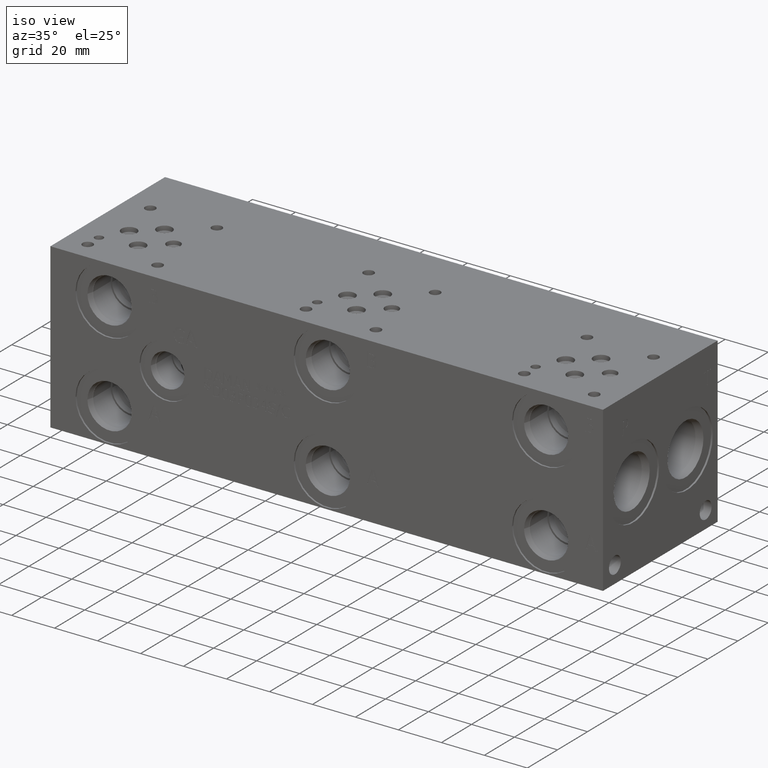
[diagram: clean part render]
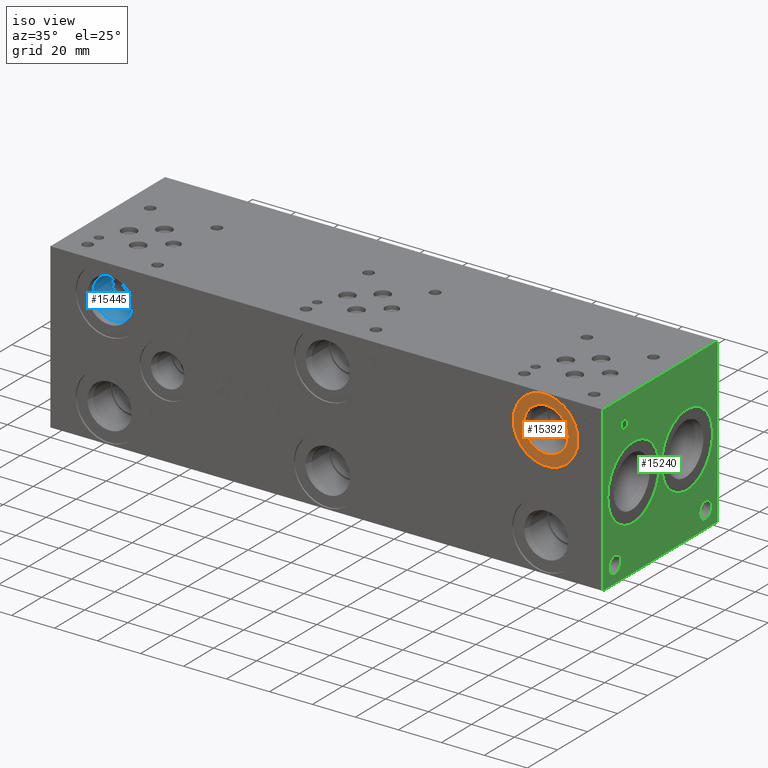
[diagram: same view with three faces highlighted in distinct colors, each labeled with its STEP entity id]
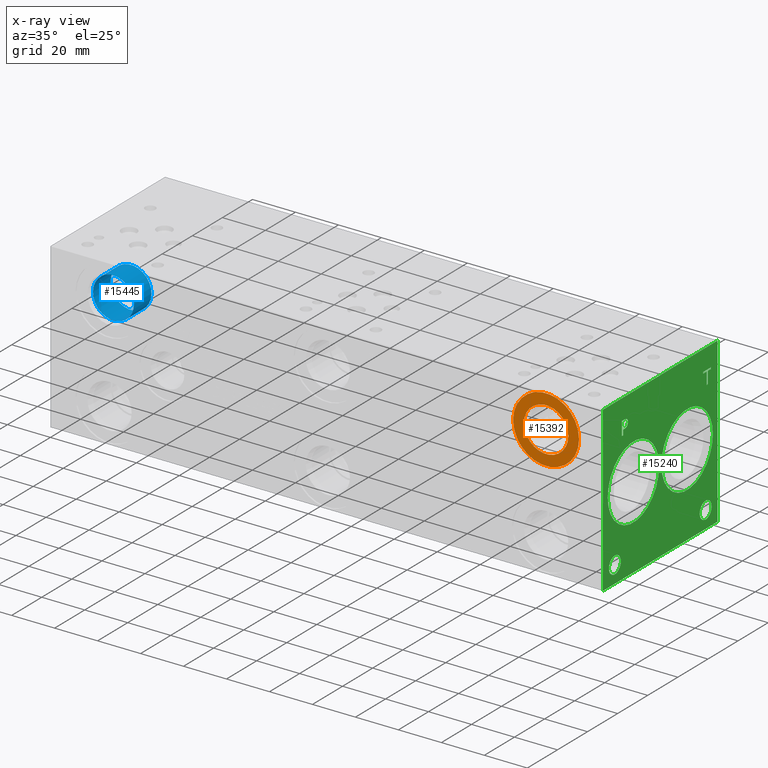
[diagram: x-ray of the same camera — body ghosted, the three highlighted faces saturated]
A machine part, iso view with three faces highlighted in distinct colors.
The next image is the same camera in x-ray (body ghosted, the three faces saturated) — at least one of them is partly hidden behind the body in this view.
Their STEP definitions:

[orange] entity #15392 — the highlighted planar face has unit normal (0, 1, 0).
#462=CIRCLE('',#16265,15.3162);
#463=CIRCLE('',#16266,15.3162);
#464=CIRCLE('',#16268,10.2997);
#465=CIRCLE('',#16269,10.2997);
#742=FACE_BOUND('',#2935,.T.);
#2043=FACE_OUTER_BOUND('',#2934,.T.);
#2934=EDGE_LOOP('',(#13052,#13053));
#2935=EDGE_LOOP('',(#13054,#13055));
#7082=VERTEX_POINT('',#26396);
#7083=VERTEX_POINT('',#26398);
#7084=VERTEX_POINT('',#26402);
#7085=VERTEX_POINT('',#26403);
#9149=EDGE_CURVE('',#7082,#7083,#462,.T.);
#9150=EDGE_CURVE('',#7083,#7082,#463,.T.);
#9151=EDGE_CURVE('',#7084,#7085,#464,.T.);
#9152=EDGE_CURVE('',#7085,#7084,#465,.T.);
#13052=ORIENTED_EDGE('',*,*,#9150,.F.);
#13053=ORIENTED_EDGE('',*,*,#9149,.F.);
#13054=ORIENTED_EDGE('',*,*,#9151,.T.);
#13055=ORIENTED_EDGE('',*,*,#9152,.T.);
#14161=PLANE('',#16267);
#15392=ADVANCED_FACE('',(#2043,#742),#14161,.F.);
#16265=AXIS2_PLACEMENT_3D('',#26399,#19266,#19267);
#16266=AXIS2_PLACEMENT_3D('',#26400,#19268,#19269);
#16267=AXIS2_PLACEMENT_3D('',#26401,#19270,#19271);
#16268=AXIS2_PLACEMENT_3D('',#26404,#19272,#19273);
#16269=AXIS2_PLACEMENT_3D('',#26405,#19274,#19275);
#19266=DIRECTION('center_axis',(0.,1.,0.));
#19267=DIRECTION('ref_axis',(1.,0.,0.));
#19268=DIRECTION('center_axis',(0.,1.,0.));
#19269=DIRECTION('ref_axis',(1.,0.,0.));
#19270=DIRECTION('center_axis',(0.,1.,0.));
#19271=DIRECTION('ref_axis',(0.,0.,1.));
#19272=DIRECTION('center_axis',(0.,1.,0.));
#19273=DIRECTION('ref_axis',(1.,0.,0.));
#19274=DIRECTION('center_axis',(0.,1.,0.));
#19275=DIRECTION('ref_axis',(1.,0.,0.));
#26396=CARTESIAN_POINT('',(214.8586,0.7874,60.325));
#26398=CARTESIAN_POINT('',(245.491,0.7874,60.325));
#26399=CARTESIAN_POINT('Origin',(230.1748,0.7874,60.325));
#26400=CARTESIAN_POINT('Origin',(230.1748,0.7874,60.325));
#26401=CARTESIAN_POINT('Origin',(240.4745,0.7874,60.325));
#26402=CARTESIAN_POINT('',(240.4745,0.7874,60.325));
#26403=CARTESIAN_POINT('',(219.8751,0.7874,60.325));
#26404=CARTESIAN_POINT('Origin',(230.1748,0.7874,60.325));
#26405=CARTESIAN_POINT('Origin',(230.1748,0.7874,60.325));

[blue] entity #15445 — the highlighted cylindrical surface (bore or boss wall) has radius 9.525 mm, axis along (0, -1, 0).
#182=CYLINDRICAL_SURFACE('',#16402,9.525);
#543=CIRCLE('',#16399,9.525);
#544=CIRCLE('',#16400,9.525);
#546=CIRCLE('',#16403,9.525);
#2096=FACE_OUTER_BOUND('',#2997,.T.);
#2997=EDGE_LOOP('',(#13306,#13307,#13308,#13309,#13310));
#4396=LINE('',#26670,#5731);
#5731=VECTOR('',#19587,9.525);
#7169=VERTEX_POINT('',#26661);
#7170=VERTEX_POINT('',#26662);
#7172=VERTEX_POINT('',#26668);
#9273=EDGE_CURVE('',#7169,#7170,#543,.T.);
#9274=EDGE_CURVE('',#7170,#7169,#544,.T.);
#9276=EDGE_CURVE('',#7172,#7172,#546,.T.);
#9277=EDGE_CURVE('',#7172,#7170,#4396,.T.);
#13306=ORIENTED_EDGE('',*,*,#9276,.F.);
#13307=ORIENTED_EDGE('',*,*,#9277,.T.);
#13308=ORIENTED_EDGE('',*,*,#9273,.F.);
#13309=ORIENTED_EDGE('',*,*,#9274,.F.);
#13310=ORIENTED_EDGE('',*,*,#9277,.F.);
#15445=ADVANCED_FACE('',(#2096),#182,.F.);
#16399=AXIS2_PLACEMENT_3D('',#26663,#19577,#19578);
#16400=AXIS2_PLACEMENT_3D('',#26664,#19579,#19580);
#16402=AXIS2_PLACEMENT_3D('',#26667,#19583,#19584);
#16403=AXIS2_PLACEMENT_3D('',#26669,#19585,#19586);
#19577=DIRECTION('center_axis',(0.,-1.,0.));
#19578=DIRECTION('ref_axis',(1.,0.,0.));
#19579=DIRECTION('center_axis',(0.,-1.,0.));
#19580=DIRECTION('ref_axis',(1.,0.,0.));
#19583=DIRECTION('center_axis',(0.,-1.,0.));
#19584=DIRECTION('ref_axis',(1.,0.,0.));
#19585=DIRECTION('center_axis',(0.,1.,0.));
#19586=DIRECTION('ref_axis',(1.,0.,0.));
#19587=DIRECTION('',(0.,1.,0.));
#26661=CARTESIAN_POINT('',(36.4998,15.0622,60.325));
#26662=CARTESIAN_POINT('',(17.4498,15.0622,60.325));
#26663=CARTESIAN_POINT('Origin',(26.9748,15.0622,60.325));
#26664=CARTESIAN_POINT('Origin',(26.9748,15.0622,60.325));
#26667=CARTESIAN_POINT('Origin',(26.9748,7.5311,60.325));
#26668=CARTESIAN_POINT('',(17.4498,3.4036,60.325));
#26669=CARTESIAN_POINT('Origin',(26.9748,3.4036,60.325));
#26670=CARTESIAN_POINT('',(17.4498,7.5311,60.325));

[green] entity #15240 — the highlighted planar face has unit normal (1, 0, 0).
#234=CIRCLE('',#15894,17.0688);
#235=CIRCLE('',#15895,17.0688);
#236=CIRCLE('',#15896,17.0688);
#237=CIRCLE('',#15897,17.0688);
#238=CIRCLE('',#15898,3.9624);
#239=CIRCLE('',#15899,3.9624);
#240=CIRCLE('',#15900,3.9624);
#241=CIRCLE('',#15901,3.9624);
#712=FACE_BOUND('',#2753,.T.);
#713=FACE_BOUND('',#2754,.T.);
#714=FACE_BOUND('',#2755,.T.);
#715=FACE_BOUND('',#2756,.T.);
#716=FACE_BOUND('',#2757,.T.);
#717=FACE_BOUND('',#2758,.T.);
#1152=B_SPLINE_CURVE_WITH_KNOTS('',2,(#25209,#25210,#25211,#25212),
 .UNSPECIFIED.,.F.,.F.,(3,1,3),(0.,1.,2.),.UNSPECIFIED.);
#1154=B_SPLINE_CURVE_WITH_KNOTS('',2,(#25230,#25231,#25232,#25233),
 .UNSPECIFIED.,.F.,.F.,(3,1,3),(0.,1.,2.),.UNSPECIFIED.);
#1156=B_SPLINE_CURVE_WITH_KNOTS('',2,(#25279,#25280,#25281,#25282),
 .UNSPECIFIED.,.F.,.F.,(3,1,3),(0.,1.,2.),.UNSPECIFIED.);
#1158=B_SPLINE_CURVE_WITH_KNOTS('',2,(#25297,#25298,#25299,#25300),
 .UNSPECIFIED.,.F.,.F.,(3,1,3),(0.,1.,2.),.UNSPECIFIED.);
#1891=FACE_OUTER_BOUND('',#2752,.T.);
#2752=EDGE_LOOP('',(#12262,#12263,#12264,#12265));
#2753=EDGE_LOOP('',(#12266,#12267));
#2754=EDGE_LOOP('',(#12268,#12269));
#2755=EDGE_LOOP('',(#12270,#12271));
#2756=EDGE_LOOP('',(#12272,#12273));
#2757=EDGE_LOOP('',(#12274,#12275,#12276,#12277,#12278,#12279,#12280,#12281));
#2758=EDGE_LOOP('',(#12282,#12283,#12284,#12285,#12286,#12287,#12288,#12289,
#12290));
#3461=LINE('',#22599,#4796);
#4156=LINE('',#25242,#5491);
#4159=LINE('',#25248,#5494);
#4162=LINE('',#25254,#5497);
#4165=LINE('',#25260,#5500);
#4168=LINE('',#25266,#5503);
#4172=LINE('',#25308,#5507);
#4173=LINE('',#25310,#5508);
#4174=LINE('',#25311,#5509);
#4175=LINE('',#25330,#5510);
#4176=LINE('',#25332,#5511);
#4177=LINE('',#25334,#5512);
#4178=LINE('',#25336,#5513);
#4179=LINE('',#25338,#5514);
#4180=LINE('',#25340,#5515);
#4181=LINE('',#25342,#5516);
#4182=LINE('',#25343,#5517);
#4796=VECTOR('',#17108,10.);
#5491=VECTOR('',#18315,10.);
#5494=VECTOR('',#18320,10.);
#5497=VECTOR('',#18325,10.);
#5500=VECTOR('',#18330,10.);
#5503=VECTOR('',#18335,10.);
#5507=VECTOR('',#18343,10.);
#5508=VECTOR('',#18344,10.);
#5509=VECTOR('',#18345,10.);
#5510=VECTOR('',#18362,10.);
#5511=VECTOR('',#18363,10.);
#5512=VECTOR('',#18364,10.);
#5513=VECTOR('',#18365,10.);
#5514=VECTOR('',#18366,10.);
#5515=VECTOR('',#18367,10.);
#5516=VECTOR('',#18368,10.);
#5517=VECTOR('',#18369,10.);
#6167=VERTEX_POINT('',#22596);
#6168=VERTEX_POINT('',#22598);
#6734=VERTEX_POINT('',#25207);
#6735=VERTEX_POINT('',#25208);
#6738=VERTEX_POINT('',#25229);
#6740=VERTEX_POINT('',#25241);
#6742=VERTEX_POINT('',#25247);
#6744=VERTEX_POINT('',#25253);
#6746=VERTEX_POINT('',#25259);
#6748=VERTEX_POINT('',#25265);
#6750=VERTEX_POINT('',#25278);
#6752=VERTEX_POINT('',#25307);
#6753=VERTEX_POINT('',#25309);
#6754=VERTEX_POINT('',#25312);
#6755=VERTEX_POINT('',#25313);
#6756=VERTEX_POINT('',#25316);
#6757=VERTEX_POINT('',#25317);
#6758=VERTEX_POINT('',#25320);
#6759=VERTEX_POINT('',#25321);
#6760=VERTEX_POINT('',#25324);
#6761=VERTEX_POINT('',#25325);
#6762=VERTEX_POINT('',#25328);
#6763=VERTEX_POINT('',#25329);
#6764=VERTEX_POINT('',#25331);
#6765=VERTEX_POINT('',#25333);
#6766=VERTEX_POINT('',#25335);
#6767=VERTEX_POINT('',#25337);
#6768=VERTEX_POINT('',#25339);
#6769=VERTEX_POINT('',#25341);
#7845=EDGE_CURVE('',#6167,#6168,#3461,.T.);
#8687=EDGE_CURVE('',#6734,#6735,#1152,.T.);
#8691=EDGE_CURVE('',#6738,#6734,#1154,.T.);
#8694=EDGE_CURVE('',#6740,#6738,#4156,.T.);
#8697=EDGE_CURVE('',#6742,#6740,#4159,.T.);
#8700=EDGE_CURVE('',#6744,#6742,#4162,.T.);
#8703=EDGE_CURVE('',#6746,#6744,#4165,.T.);
#8706=EDGE_CURVE('',#6748,#6746,#4168,.T.);
#8709=EDGE_CURVE('',#6750,#6748,#1156,.T.);
#8712=EDGE_CURVE('',#6735,#6750,#1158,.T.);
#8714=EDGE_CURVE('',#6167,#6752,#4172,.T.);
#8715=EDGE_CURVE('',#6752,#6753,#4173,.T.);
#8716=EDGE_CURVE('',#6168,#6753,#4174,.T.);
#8717=EDGE_CURVE('',#6754,#6755,#234,.T.);
#8718=EDGE_CURVE('',#6755,#6754,#235,.T.);
#8719=EDGE_CURVE('',#6756,#6757,#236,.T.);
#8720=EDGE_CURVE('',#6757,#6756,#237,.T.);
#8721=EDGE_CURVE('',#6758,#6759,#238,.T.);
#8722=EDGE_CURVE('',#6759,#6758,#239,.T.);
#8723=EDGE_CURVE('',#6760,#6761,#240,.T.);
#8724=EDGE_CURVE('',#6761,#6760,#241,.T.);
#8725=EDGE_CURVE('',#6762,#6763,#4175,.T.);
#8726=EDGE_CURVE('',#6763,#6764,#4176,.T.);
#8727=EDGE_CURVE('',#6764,#6765,#4177,.T.);
#8728=EDGE_CURVE('',#6765,#6766,#4178,.T.);
#8729=EDGE_CURVE('',#6766,#6767,#4179,.T.);
#8730=EDGE_CURVE('',#6767,#6768,#4180,.T.);
#8731=EDGE_CURVE('',#6768,#6769,#4181,.T.);
#8732=EDGE_CURVE('',#6769,#6762,#4182,.T.);
#12262=ORIENTED_EDGE('',*,*,#8714,.T.);
#12263=ORIENTED_EDGE('',*,*,#8715,.T.);
#12264=ORIENTED_EDGE('',*,*,#8716,.F.);
#12265=ORIENTED_EDGE('',*,*,#7845,.F.);
#12266=ORIENTED_EDGE('',*,*,#8717,.T.);
#12267=ORIENTED_EDGE('',*,*,#8718,.T.);
#12268=ORIENTED_EDGE('',*,*,#8719,.T.);
#12269=ORIENTED_EDGE('',*,*,#8720,.T.);
#12270=ORIENTED_EDGE('',*,*,#8721,.T.);
#12271=ORIENTED_EDGE('',*,*,#8722,.T.);
#12272=ORIENTED_EDGE('',*,*,#8723,.T.);
#12273=ORIENTED_EDGE('',*,*,#8724,.T.);
#12274=ORIENTED_EDGE('',*,*,#8725,.T.);
#12275=ORIENTED_EDGE('',*,*,#8726,.T.);
#12276=ORIENTED_EDGE('',*,*,#8727,.T.);
#12277=ORIENTED_EDGE('',*,*,#8728,.T.);
#12278=ORIENTED_EDGE('',*,*,#8729,.T.);
#12279=ORIENTED_EDGE('',*,*,#8730,.T.);
#12280=ORIENTED_EDGE('',*,*,#8731,.T.);
#12281=ORIENTED_EDGE('',*,*,#8732,.T.);
#12282=ORIENTED_EDGE('',*,*,#8687,.T.);
#12283=ORIENTED_EDGE('',*,*,#8712,.T.);
#12284=ORIENTED_EDGE('',*,*,#8709,.T.);
#12285=ORIENTED_EDGE('',*,*,#8706,.T.);
#12286=ORIENTED_EDGE('',*,*,#8703,.T.);
#12287=ORIENTED_EDGE('',*,*,#8700,.T.);
#12288=ORIENTED_EDGE('',*,*,#8697,.T.);
#12289=ORIENTED_EDGE('',*,*,#8694,.T.);
#12290=ORIENTED_EDGE('',*,*,#8691,.T.);
#14114=PLANE('',#15893);
#15240=ADVANCED_FACE('',(#1891,#712,#713,#714,#715,#716,#717),#14114,.T.);
#15893=AXIS2_PLACEMENT_3D('',#25306,#18341,#18342);
#15894=AXIS2_PLACEMENT_3D('',#25314,#18346,#18347);
#15895=AXIS2_PLACEMENT_3D('',#25315,#18348,#18349);
#15896=AXIS2_PLACEMENT_3D('',#25318,#18350,#18351);
#15897=AXIS2_PLACEMENT_3D('',#25319,#18352,#18353);
#15898=AXIS2_PLACEMENT_3D('',#25322,#18354,#18355);
#15899=AXIS2_PLACEMENT_3D('',#25323,#18356,#18357);
#15900=AXIS2_PLACEMENT_3D('',#25326,#18358,#18359);
#15901=AXIS2_PLACEMENT_3D('',#25327,#18360,#18361);
#17108=DIRECTION('',(0.,0.,1.));
#18315=DIRECTION('',(0.,1.,0.));
#18320=DIRECTION('',(0.,0.,1.));
#18325=DIRECTION('',(0.,-1.,0.));
#18330=DIRECTION('',(0.,0.,-1.));
#18335=DIRECTION('',(0.,-1.,0.));
#18341=DIRECTION('center_axis',(1.,0.,0.));
#18342=DIRECTION('ref_axis',(0.,1.,0.));
#18343=DIRECTION('',(0.,1.,0.));
#18344=DIRECTION('',(0.,0.,1.));
#18345=DIRECTION('',(0.,1.,0.));
#18346=DIRECTION('center_axis',(-1.,0.,0.));
#18347=DIRECTION('ref_axis',(0.,1.,0.));
#18348=DIRECTION('center_axis',(-1.,0.,0.));
#18349=DIRECTION('ref_axis',(0.,1.,0.));
#18350=DIRECTION('center_axis',(-1.,0.,0.));
#18351=DIRECTION('ref_axis',(0.,1.,0.));
#18352=DIRECTION('center_axis',(-1.,0.,0.));
#18353=DIRECTION('ref_axis',(0.,1.,0.));
#18354=DIRECTION('center_axis',(-1.,0.,0.));
#18355=DIRECTION('ref_axis',(0.,1.,0.));
#18356=DIRECTION('center_axis',(-1.,0.,0.));
#18357=DIRECTION('ref_axis',(0.,1.,0.));
#18358=DIRECTION('center_axis',(-1.,0.,0.));
#18359=DIRECTION('ref_axis',(0.,1.,0.));
#18360=DIRECTION('center_axis',(-1.,0.,0.));
#18361=DIRECTION('ref_axis',(0.,1.,0.));
#18362=DIRECTION('',(0.,-1.,0.));
#18363=DIRECTION('',(0.,0.,1.));
#18364=DIRECTION('',(0.,-1.,0.));
#18365=DIRECTION('',(0.,0.,1.));
#18366=DIRECTION('',(0.,1.,0.));
#18367=DIRECTION('',(0.,0.,-1.));
#18368=DIRECTION('',(0.,-1.,0.));
#18369=DIRECTION('',(0.,0.,-1.));
#22596=CARTESIAN_POINT('',(257.175,0.,0.));
#22598=CARTESIAN_POINT('',(257.175,0.,76.2));
#22599=CARTESIAN_POINT('',(257.175,0.,0.));
#25207=CARTESIAN_POINT('',(257.175,15.8068172023594,66.2787681439707));
#25208=CARTESIAN_POINT('',(257.175,16.563259654532,64.760737372604));
#25209=CARTESIAN_POINT('Ctrl Pts',(257.175,15.8068172023594,66.2787681439707));
#25210=CARTESIAN_POINT('Ctrl Pts',(257.175,16.1618820268486,66.0369123939564));
#25211=CARTESIAN_POINT('Ctrl Pts',(257.175,16.563259654532,65.2907616758269));
#25212=CARTESIAN_POINT('Ctrl Pts',(257.175,16.563259654532,64.760737372604));
#25229=CARTESIAN_POINT('',(257.175,14.1447021543883,66.6749999046326));
#25230=CARTESIAN_POINT('Ctrl Pts',(257.175,14.1447021543883,66.6749999046326));
#25231=CARTESIAN_POINT('Ctrl Pts',(257.175,14.7107475267624,66.6749999046326));
#25232=CARTESIAN_POINT('Ctrl Pts',(257.175,15.503211048086,66.4897486918556));
#25233=CARTESIAN_POINT('Ctrl Pts',(257.175,15.8068172023594,66.2787681439707));
#25241=CARTESIAN_POINT('',(257.175,12.5494833776978,66.6749999046326));
#25242=CARTESIAN_POINT('',(257.175,6.27474168884889,66.6749999046326));
#25247=CARTESIAN_POINT('',(257.175,12.5494833776978,60.325));
#25248=CARTESIAN_POINT('',(257.175,12.5494833776978,30.1625));
#25253=CARTESIAN_POINT('',(257.175,13.3934055692373,60.325));
#25254=CARTESIAN_POINT('',(257.175,6.69670278461864,60.325));
#25259=CARTESIAN_POINT('',(257.175,13.3934055692373,62.6920988299279));
#25260=CARTESIAN_POINT('',(257.175,13.3934055692373,31.3460494149639));
#25265=CARTESIAN_POINT('',(257.175,14.1086810852372,62.6920988299279));
#25266=CARTESIAN_POINT('',(257.175,7.05434054261861,62.6920988299279));
#25278=CARTESIAN_POINT('',(257.175,16.0075060162011,63.3507698086904));
#25279=CARTESIAN_POINT('Ctrl Pts',(257.175,16.0075060162011,63.3507698086904));
#25280=CARTESIAN_POINT('Ctrl Pts',(257.175,15.6781705268198,63.0265801863307));
#25281=CARTESIAN_POINT('Ctrl Pts',(257.175,14.7879355320861,62.6920988299279));
#25282=CARTESIAN_POINT('Ctrl Pts',(257.175,14.1086810852372,62.6920988299279));
#25297=CARTESIAN_POINT('Ctrl Pts',(257.175,16.563259654532,64.760737372604));
#25298=CARTESIAN_POINT('Ctrl Pts',(257.175,16.563259654532,64.3490680108774));
#25299=CARTESIAN_POINT('Ctrl Pts',(257.175,16.2699452343018,63.6080631597695));
#25300=CARTESIAN_POINT('Ctrl Pts',(257.175,16.0075060162011,63.3507698086904));
#25306=CARTESIAN_POINT('Origin',(257.175,0.,0.));
#25307=CARTESIAN_POINT('',(257.175,76.2,0.));
#25308=CARTESIAN_POINT('',(257.175,0.,0.));
#25309=CARTESIAN_POINT('',(257.175,76.2,76.2));
#25310=CARTESIAN_POINT('',(257.175,76.2,0.));
#25311=CARTESIAN_POINT('',(257.175,0.,76.2));
#25312=CARTESIAN_POINT('',(257.175,37.3126,38.1));
#25313=CARTESIAN_POINT('',(257.175,3.175,38.1));
#25314=CARTESIAN_POINT('Origin',(257.175,20.2438,38.1));
#25315=CARTESIAN_POINT('Origin',(257.175,20.2438,38.1));
#25316=CARTESIAN_POINT('',(257.175,73.025,38.1));
#25317=CARTESIAN_POINT('',(257.175,38.8874,38.1));
#25318=CARTESIAN_POINT('Origin',(257.175,55.9562,38.1));
#25319=CARTESIAN_POINT('Origin',(257.175,55.9562,38.1));
#25320=CARTESIAN_POINT('',(257.175,72.2376,7.9248));
#25321=CARTESIAN_POINT('',(257.175,64.3128,7.9248));
#25322=CARTESIAN_POINT('Origin',(257.175,68.2752,7.9248));
#25323=CARTESIAN_POINT('Origin',(257.175,68.2752,7.9248));
#25324=CARTESIAN_POINT('',(257.175,11.8872,7.9248));
#25325=CARTESIAN_POINT('',(257.175,3.9624,7.9248));
#25326=CARTESIAN_POINT('Origin',(257.175,7.9248,7.9248));
#25327=CARTESIAN_POINT('Origin',(257.175,7.9248,7.9248));
#25328=CARTESIAN_POINT('',(257.175,69.644165271453,60.325));
#25329=CARTESIAN_POINT('',(257.175,68.8002430799135,60.325));
#25330=CARTESIAN_POINT('',(257.175,34.8220826357265,60.325));
#25331=CARTESIAN_POINT('',(257.175,68.8002430799135,65.9237033194816));
#25332=CARTESIAN_POINT('',(257.175,68.8002430799135,30.1625));
#25333=CARTESIAN_POINT('',(257.175,66.6698541329784,65.9237033194816));
#25334=CARTESIAN_POINT('',(257.175,34.4001215399567,65.9237033194816));
#25335=CARTESIAN_POINT('',(257.175,66.6698541329784,66.6749999046326));
#25336=CARTESIAN_POINT('',(257.175,66.6698541329784,32.9618516597408));
#25337=CARTESIAN_POINT('',(257.175,71.7745542183881,66.6749999046326));
#25338=CARTESIAN_POINT('',(257.175,33.3349270664892,66.6749999046326));
#25339=CARTESIAN_POINT('',(257.175,71.7745542183881,65.9237033194816));
#25340=CARTESIAN_POINT('',(257.175,71.7745542183881,33.3374999523163));
#25341=CARTESIAN_POINT('',(257.175,69.644165271453,65.9237033194816));
#25342=CARTESIAN_POINT('',(257.175,35.887277109194,65.9237033194816));
#25343=CARTESIAN_POINT('',(257.175,69.644165271453,32.9618516597408));